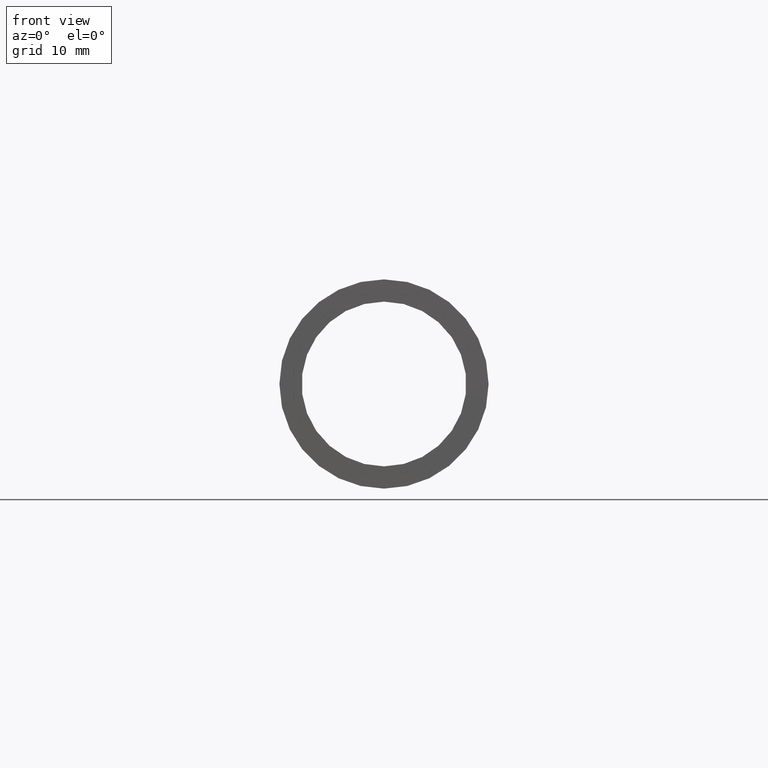
[diagram: clean part render]
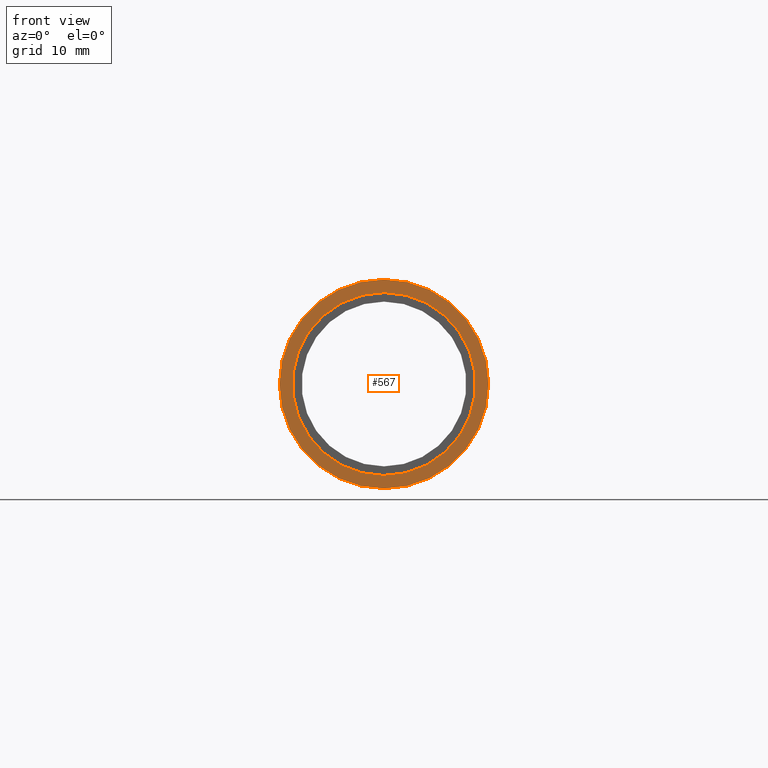
[diagram: same view with one face highlighted and labeled with its STEP entity id]
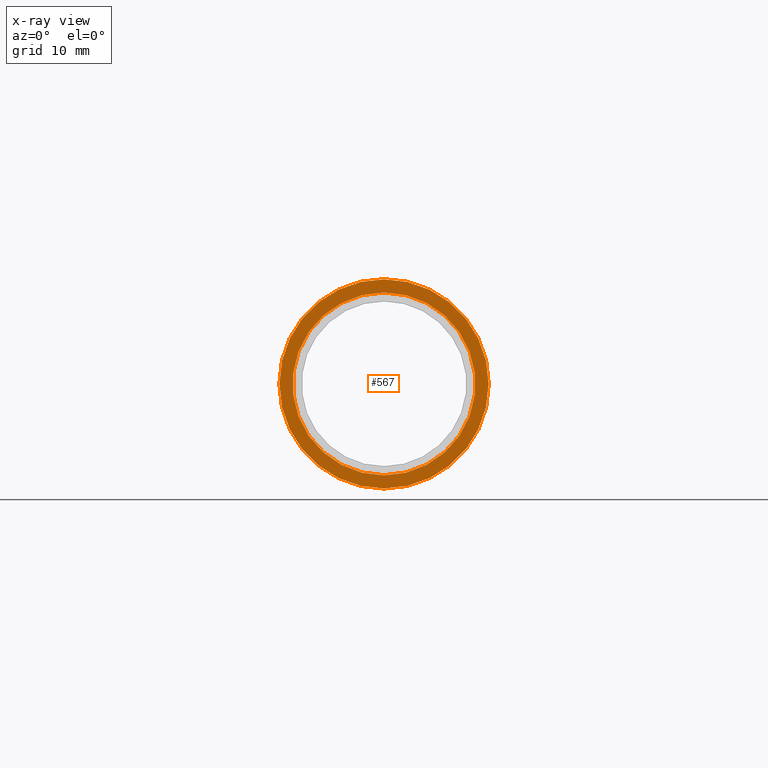
[diagram: x-ray of the same camera — body ghosted, the highlighted face saturated]
A machine part, front view. The second image highlights one B-rep face of the part: STEP entity #567.
The next image is the same camera in x-ray: the body ghosted, the highlighted face saturated — about 0% of this face is hidden behind the body in this view.
In plain terms, the highlighted planar face has unit normal (-0, 1, 0).
Its self-contained STEP definition (entity closure, byte-faithful):
#28 = CARTESIAN_POINT ( 'NONE',  ( 0.0000000000000000000, -2.775557561562891400E-014, 0.0000000000000000000 ) ) ;
#31 = DIRECTION ( 'NONE',  ( 0.0000000000000000000, 0.0000000000000000000, 1.000000000000000000 ) ) ;
#48 = CARTESIAN_POINT ( 'NONE',  ( 11.10000000000001700, -1.580543700394483700E-014, 0.0000000000000000000 ) ) ;
#52 = PLANE ( 'NONE',  #404 ) ;
#81 = CIRCLE ( 'NONE', #514, 12.70000000000002100 ) ;
#113 = FACE_BOUND ( 'NONE', #326, .T. ) ;
#117 = CARTESIAN_POINT ( 'NONE',  ( 0.0000000000000000000, -2.775557561562891400E-014, 11.10000000000001700 ) ) ;
#123 = DIRECTION ( 'NONE',  ( -0.0000000000000000000, 1.000000000000000000, -0.0000000000000000000 ) ) ;
#125 = DIRECTION ( 'NONE',  ( -0.0000000000000000000, 1.000000000000000000, -0.0000000000000000000 ) ) ;
#131 = ORIENTED_EDGE ( 'NONE', *, *, #327, .F. ) ;
#167 = ORIENTED_EDGE ( 'NONE', *, *, #432, .T. ) ;
#174 = CARTESIAN_POINT ( 'NONE',  ( 0.0000000000000000000, -2.775557561562891400E-014, 0.0000000000000000000 ) ) ;
#176 = CARTESIAN_POINT ( 'NONE',  ( 1.359357947053564100E-015, -2.775557561562891400E-014, -11.10000000000001700 ) ) ;
#184 = ORIENTED_EDGE ( 'NONE', *, *, #291, .T. ) ;
#194 = EDGE_LOOP ( 'NONE', ( #493, #131 ) ) ;
#217 = VERTEX_POINT ( 'NONE', #602 ) ;
#247 = FACE_OUTER_BOUND ( 'NONE', #194, .T. ) ;
#274 = CIRCLE ( 'NONE', #473, 11.10000000000001700 ) ;
#279 = CIRCLE ( 'NONE', #546, 12.70000000000002100 ) ;
#291 = EDGE_CURVE ( 'NONE', #319, #381, #274, .T. ) ;
#293 = AXIS2_PLACEMENT_3D ( 'NONE', #367, #526, #418 ) ;
#319 = VERTEX_POINT ( 'NONE', #117 ) ;
#326 = EDGE_LOOP ( 'NONE', ( #184, #167 ) ) ;
#327 = EDGE_CURVE ( 'NONE', #217, #611, #81, .T. ) ;
#338 = DIRECTION ( 'NONE',  ( 0.0000000000000000000, 0.0000000000000000000, 1.000000000000000000 ) ) ;
#356 = EDGE_CURVE ( 'NONE', #611, #217, #279, .T. ) ;
#367 = CARTESIAN_POINT ( 'NONE',  ( 0.0000000000000000000, -2.775557561562891400E-014, 0.0000000000000000000 ) ) ;
#381 = VERTEX_POINT ( 'NONE', #176 ) ;
#403 = DIRECTION ( 'NONE',  ( 0.0000000000000000000, 0.0000000000000000000, 1.000000000000000000 ) ) ;
#404 = AXIS2_PLACEMENT_3D ( 'NONE', #48, #428, #338 ) ;
#418 = DIRECTION ( 'NONE',  ( 0.0000000000000000000, 0.0000000000000000000, 1.000000000000000000 ) ) ;
#428 = DIRECTION ( 'NONE',  ( -0.0000000000000000000, 1.000000000000000000, 0.0000000000000000000 ) ) ;
#432 = EDGE_CURVE ( 'NONE', #381, #319, #560, .T. ) ;
#437 = CARTESIAN_POINT ( 'NONE',  ( 0.0000000000000000000, -2.775557561562891400E-014, 12.70000000000002100 ) ) ;
#452 = CARTESIAN_POINT ( 'NONE',  ( 0.0000000000000000000, -2.775557561562891400E-014, 0.0000000000000000000 ) ) ;
#454 = DIRECTION ( 'NONE',  ( -0.0000000000000000000, 1.000000000000000000, -0.0000000000000000000 ) ) ;
#473 = AXIS2_PLACEMENT_3D ( 'NONE', #28, #123, #403 ) ;
#493 = ORIENTED_EDGE ( 'NONE', *, *, #356, .F. ) ;
#511 = DIRECTION ( 'NONE',  ( 0.0000000000000000000, 0.0000000000000000000, 1.000000000000000000 ) ) ;
#514 = AXIS2_PLACEMENT_3D ( 'NONE', #174, #454, #31 ) ;
#526 = DIRECTION ( 'NONE',  ( -0.0000000000000000000, 1.000000000000000000, -0.0000000000000000000 ) ) ;
#546 = AXIS2_PLACEMENT_3D ( 'NONE', #452, #125, #511 ) ;
#560 = CIRCLE ( 'NONE', #293, 11.10000000000001700 ) ;
#567 = ADVANCED_FACE ( 'NONE', ( #247, #113 ), #52, .F. ) ;
#602 = CARTESIAN_POINT ( 'NONE',  ( 1.555301434917141000E-015, -2.775557561562891400E-014, -12.70000000000002100 ) ) ;
#611 = VERTEX_POINT ( 'NONE', #437 ) ;